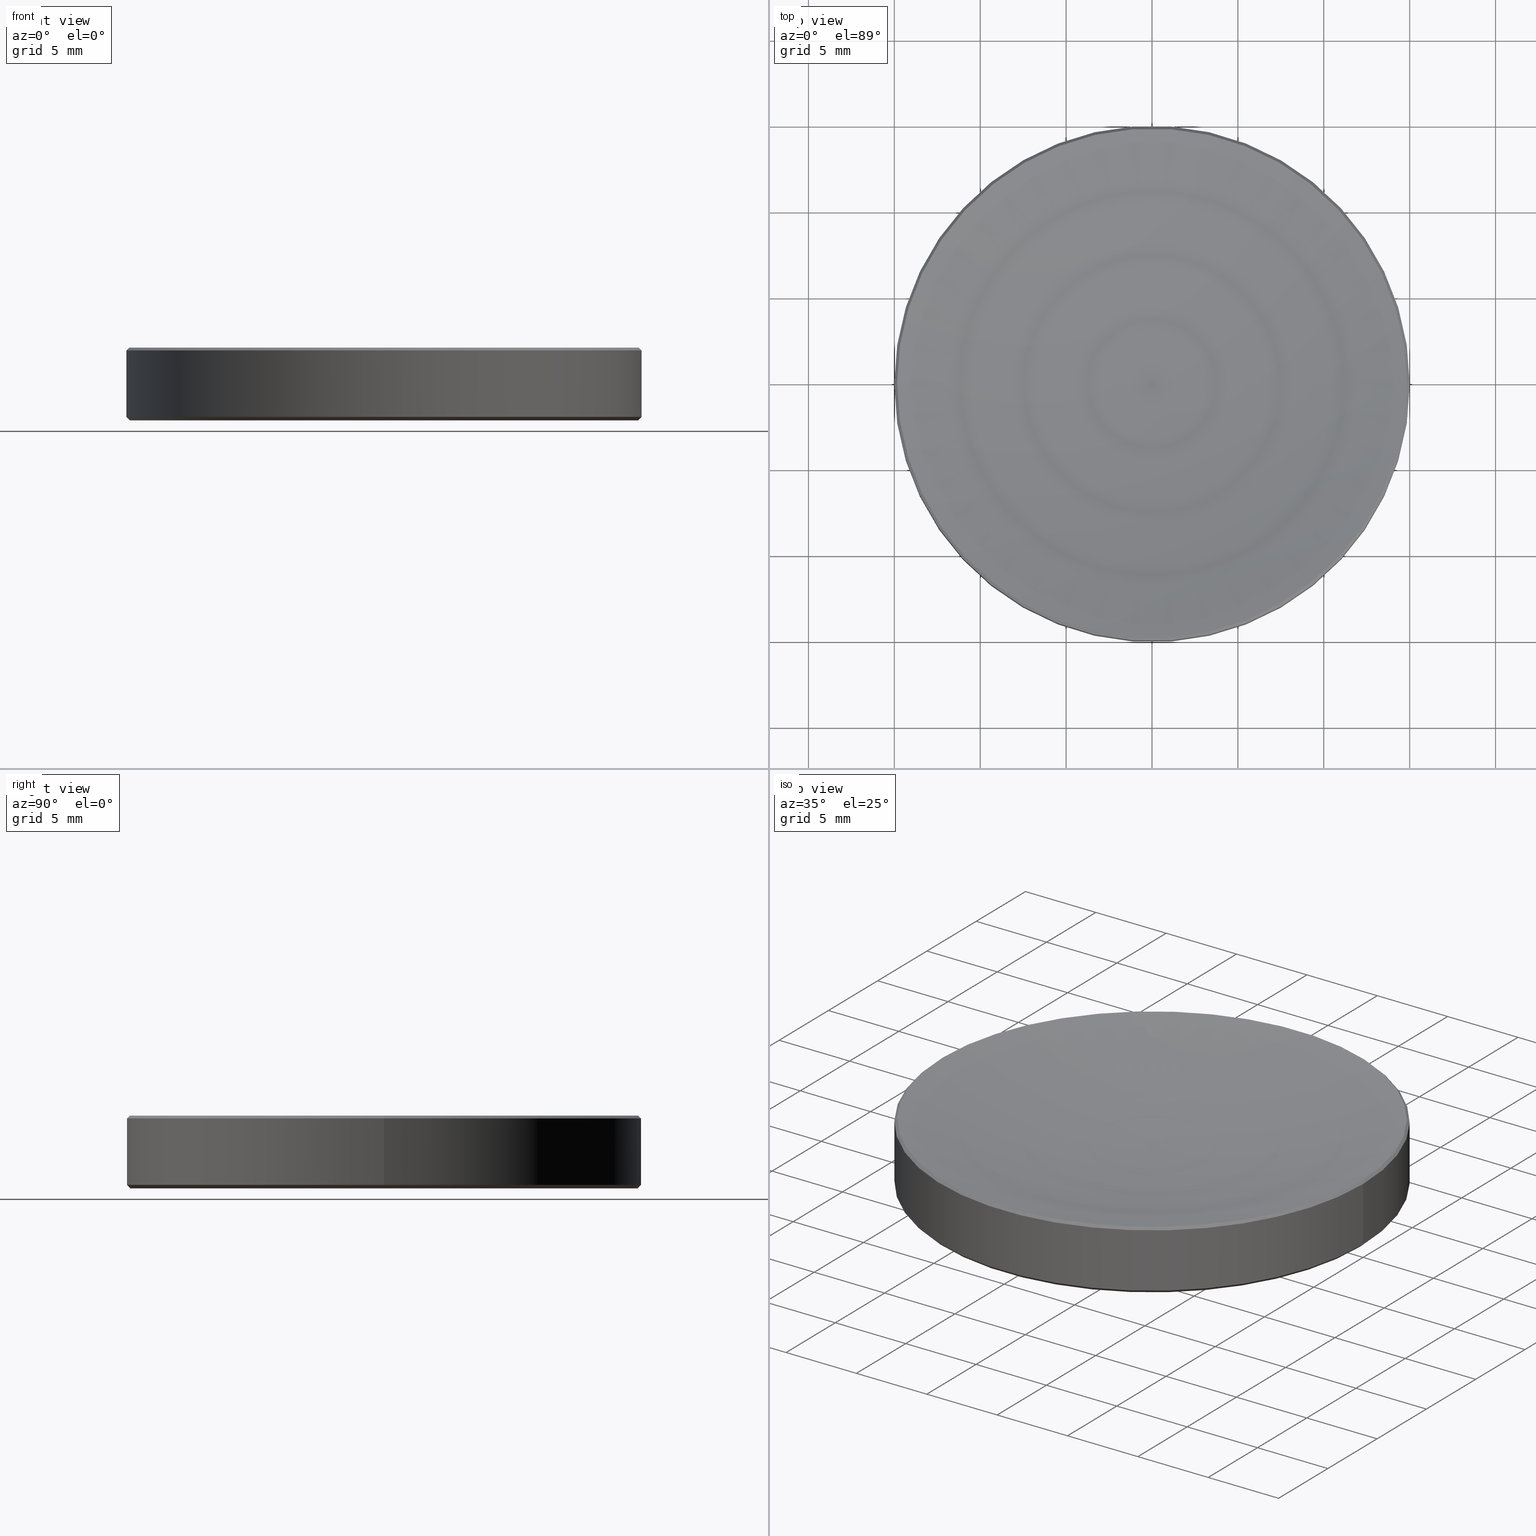
[diagram: canonical four-view strip — front | top / right | iso, engineering-drawing reading convention]
A machine part, canonical four-view strip (front | top / right | iso — engineering-drawing reading convention). The complete STEP part file that produces these views, byte-faithful:
ISO-10303-21;
HEADER;
FILE_DESCRIPTION (( 'STEP AP214' ),
    '1' );
FILE_NAME ('GL13-030-125.STEP',
    '2022-10-25T13:47:10',
    ( '' ),
    ( '' ),
    'SwSTEP 2.0',
    'SolidWorks 2022',
    '' );
FILE_SCHEMA (( 'AUTOMOTIVE_DESIGN' ));
ENDSEC;

DATA;
#1 = AXIS2_PLACEMENT_3D ( 'NONE', #4, #146, #153 ) ;
#2 = FACE_OUTER_BOUND ( 'NONE', #69, .T. ) ;
#3 = PRODUCT_CONTEXT ( 'NONE', #5, 'mechanical' ) ;
#4 = CARTESIAN_POINT ( 'NONE',  ( 0.000000000000000000, 0.000000000000000000, 0.000000000000000000 ) ) ;
#5 = APPLICATION_CONTEXT ( 'automotive_design' ) ;
#6 = EDGE_CURVE ( 'NONE', #188, #123, #131, .T. ) ;
#7 = VECTOR ( 'NONE', #121, 1000.000000000000000 ) ;
#8 = ORIENTED_EDGE ( 'NONE', *, *, #246, .T. ) ;
#9 = ORIENTED_EDGE ( 'NONE', *, *, #178, .F. ) ;
#10 = DIRECTION ( 'NONE',  ( 0.7071067811865475727, 0.000000000000000000, 0.7071067811865474617 ) ) ;
#11 = PRODUCT ( 'GL13-030-125', 'GL13-030-125', '', ( #3 ) ) ;
#12 = DIRECTION ( 'NONE',  ( 0.000000000000000000, 0.000000000000000000, -1.000000000000000000 ) ) ;
#13 = DIRECTION ( 'NONE',  ( -0.000000000000000000, -0.000000000000000000, 1.000000000000000000 ) ) ;
#14 = CARTESIAN_POINT ( 'NONE',  ( 0.000000000000000000, 0.000000000000000000, 4.231581091428418873 ) ) ;
#15 = CARTESIAN_POINT ( 'NONE',  ( -15.00000000000000000, 1.836970198721029589E-15, 2.500000000000000000 ) ) ;
#16 =( NAMED_UNIT ( * ) PLANE_ANGLE_UNIT ( ) SI_UNIT ( $, .RADIAN. ) );
#17 = CARTESIAN_POINT ( 'NONE',  ( -15.00000000000000000, 1.836970198721029194E-15, 0.1999999999999944600 ) ) ;
#18 = PRODUCT_DEFINITION ( 'δ֪', '', #204, #42 ) ;
#19 = CARTESIAN_POINT ( 'NONE',  ( 15.00000000000000000, 0.000000000000000000, 4.070000000000018048 ) ) ;
#20 = DIRECTION ( 'NONE',  ( -0.000000000000000000, -0.000000000000000000, 1.000000000000000000 ) ) ;
#21 = CIRCLE ( 'NONE', #169, 14.83841890857160806 ) ;
#22 =( GEOMETRIC_REPRESENTATION_CONTEXT ( 3 ) GLOBAL_UNCERTAINTY_ASSIGNED_CONTEXT ( ( #62 ) ) GLOBAL_UNIT_ASSIGNED_CONTEXT ( ( #167, #16, #182 ) ) REPRESENTATION_CONTEXT ( 'NONE', 'WORKASPACE' ) );
#23 = CIRCLE ( 'NONE', #49, 64.54999999999999716 ) ;
#24 = ORIENTED_EDGE ( 'NONE', *, *, #87, .F. ) ;
#25 = AXIS2_PLACEMENT_3D ( 'NONE', #92, #148, #265 ) ;
#26 = VERTEX_POINT ( 'NONE', #258 ) ;
#27 = CARTESIAN_POINT ( 'NONE',  ( 15.00000000000000000, 0.000000000000000000, 0.1999999999999944600 ) ) ;
#28 = DIRECTION ( 'NONE',  ( 1.000000000000000000, 0.000000000000000000, 0.000000000000000000 ) ) ;
#29 = DIRECTION ( 'NONE',  ( 0.000000000000000000, -1.000000000000000000, 0.000000000000000000 ) ) ;
#30 = EDGE_LOOP ( 'NONE', ( #264, #174, #237 ) ) ;
#31 =( LENGTH_UNIT ( ) NAMED_UNIT ( * ) SI_UNIT ( .MILLI., .METRE. ) );
#32 = CARTESIAN_POINT ( 'NONE',  ( 0.000000000000000000, 0.000000000000000000, 2.500000000000000000 ) ) ;
#33 = DIRECTION ( 'NONE',  ( 1.000000000000000000, 0.000000000000000000, 0.000000000000000000 ) ) ;
#34 =( NAMED_UNIT ( * ) SI_UNIT ( $, .STERADIAN. ) SOLID_ANGLE_UNIT ( ) );
#35 = CIRCLE ( 'NONE', #61, 64.54999999999999716 ) ;
#36 = DIRECTION ( 'NONE',  ( 1.000000000000000000, 0.000000000000000000, 0.000000000000000000 ) ) ;
#37 = ADVANCED_FACE ( 'NONE', ( #122 ), #209, .T. ) ;
#38 = DIRECTION ( 'NONE',  ( -0.000000000000000000, -0.000000000000000000, 1.000000000000000000 ) ) ;
#39 = ADVANCED_BREP_SHAPE_REPRESENTATION ( 'GL13-030-125', ( #72, #1 ), #104 ) ;
#40 = FACE_OUTER_BOUND ( 'NONE', #50, .T. ) ;
#41 = SURFACE_SIDE_STYLE ('',( #222 ) ) ;
#42 = PRODUCT_DEFINITION_CONTEXT ( 'detailed design', #90, 'design' ) ;
#43 = EDGE_CURVE ( 'NONE', #163, #251, #21, .T. ) ;
#44 = CIRCLE ( 'NONE', #25, 14.80000000000000604 ) ;
#45 = CIRCLE ( 'NONE', #152, 15.00000000000000000 ) ;
#46 = ADVANCED_FACE ( 'NONE', ( #213 ), #102, .F. ) ;
#47 = VERTEX_POINT ( 'NONE', #32 ) ;
#48 = AXIS2_PLACEMENT_3D ( 'NONE', #215, #12, #159 ) ;
#49 = AXIS2_PLACEMENT_3D ( 'NONE', #261, #29, #236 ) ;
#50 = EDGE_LOOP ( 'NONE', ( #142, #256, #134, #157 ) ) ;
#51 = CARTESIAN_POINT ( 'NONE',  ( 14.80000000000000604, 0.000000000000000000, 9.184850993605147944E-16 ) ) ;
#52 = VERTEX_POINT ( 'NONE', #176 ) ;
#53 = CIRCLE ( 'NONE', #205, 15.00000000000000000 ) ;
#54 = ADVANCED_FACE ( 'NONE', ( #234 ), #198, .T. ) ;
#55 = ORIENTED_EDGE ( 'NONE', *, *, #186, .F. ) ;
#56 = EDGE_LOOP ( 'NONE', ( #67, #196 ) ) ;
#57 = LINE ( 'NONE', #200, #180 ) ;
#58 = LINE ( 'NONE', #220, #172 ) ;
#59 = CARTESIAN_POINT ( 'NONE',  ( -14.83841890857158852, 1.817182222078975933E-15, 4.231581091428418873 ) ) ;
#60 = AXIS2_PLACEMENT_3D ( 'NONE', #243, #239, #107 ) ;
#61 = AXIS2_PLACEMENT_3D ( 'NONE', #76, #164, #139 ) ;
#62 = UNCERTAINTY_MEASURE_WITH_UNIT (LENGTH_MEASURE( 1.000000000000000082E-05 ), #167, 'distance_accuracy_value', 'NONE');
#63 = ORIENTED_EDGE ( 'NONE', *, *, #165, .T. ) ;
#64 = EDGE_CURVE ( 'NONE', #26, #52, #53, .T. ) ;
#65 = CONICAL_SURFACE ( 'NONE', #60, 14.83841890857159029, 0.7853981633974321808 ) ;
#66 = CONICAL_SURFACE ( 'NONE', #115, 14.83841890857159029, 0.7853981633974321808 ) ;
#67 = ORIENTED_EDGE ( 'NONE', *, *, #144, .T. ) ;
#68 = ORIENTED_EDGE ( 'NONE', *, *, #64, .T. ) ;
#69 = EDGE_LOOP ( 'NONE', ( #177, #138, #231, #189 ) ) ;
#70 = DIRECTION ( 'NONE',  ( 1.000000000000000000, 0.000000000000000000, 0.000000000000000000 ) ) ;
#71 = EDGE_LOOP ( 'NONE', ( #206, #8, #226, #75 ) ) ;
#72 = MANIFOLD_SOLID_BREP ( '����2', #218 ) ;
#73 = CARTESIAN_POINT ( 'NONE',  ( 0.000000000000000000, 0.000000000000000000, 67.04999879552784137 ) ) ;
#74 = DIRECTION ( 'NONE',  ( 1.000000000000000000, 0.000000000000000000, 0.000000000000000000 ) ) ;
#75 = ORIENTED_EDGE ( 'NONE', *, *, #252, .T. ) ;
#76 = CARTESIAN_POINT ( 'NONE',  ( 0.01246985787228815923, -1.527117152912011826E-18, 67.04999879552784137 ) ) ;
#77 = AXIS2_PLACEMENT_3D ( 'NONE', #151, #98, #96 ) ;
#78 = ORIENTED_EDGE ( 'NONE', *, *, #43, .T. ) ;
#79 = CYLINDRICAL_SURFACE ( 'NONE', #190, 15.00000000000000000 ) ;
#80 = DIRECTION ( 'NONE',  ( 1.000000000000000000, 0.000000000000000000, 0.000000000000000000 ) ) ;
#81 = PRESENTATION_STYLE_ASSIGNMENT (( #219 ) ) ;
#82 = FILL_AREA_STYLE_COLOUR ( '', #173 ) ;
#83 = CARTESIAN_POINT ( 'NONE',  ( 0.000000000000000000, 0.000000000000000000, 9.184850993605147944E-16 ) ) ;
#84 = DIRECTION ( 'NONE',  ( 0.000000000000000000, -0.000000000000000000, 1.000000000000000000 ) ) ;
#85 =( LENGTH_UNIT ( ) NAMED_UNIT ( * ) SI_UNIT ( .MILLI., .METRE. ) );
#86 = EDGE_CURVE ( 'NONE', #179, #233, #44, .T. ) ;
#87 = EDGE_CURVE ( 'NONE', #251, #163, #119, .T. ) ;
#88 = ORIENTED_EDGE ( 'NONE', *, *, #6, .F. ) ;
#89 = VECTOR ( 'NONE', #10, 1000.000000000000000 ) ;
#90 = APPLICATION_CONTEXT ( 'automotive_design' ) ;
#91 = EDGE_CURVE ( 'NONE', #26, #123, #58, .T. ) ;
#92 = CARTESIAN_POINT ( 'NONE',  ( 0.000000000000000000, 0.000000000000000000, 9.184850993605147944E-16 ) ) ;
#93 = ORIENTED_EDGE ( 'NONE', *, *, #255, .T. ) ;
#94 = AXIS2_PLACEMENT_3D ( 'NONE', #110, #201, #36 ) ;
#95 = PRODUCT_DEFINITION_SHAPE ( 'NONE', 'NONE',  #18 ) ;
#96 = DIRECTION ( 'NONE',  ( 1.000000000000000000, 0.000000000000000000, 0.000000000000000000 ) ) ;
#97 = ADVANCED_FACE ( 'NONE', ( #2 ), #65, .T. ) ;
#98 = DIRECTION ( 'NONE',  ( -0.000000000000000000, -0.000000000000000000, 1.000000000000000000 ) ) ;
#99 = DIRECTION ( 'NONE',  ( -0.000000000000000000, -0.000000000000000000, 1.000000000000000000 ) ) ;
#100 = DIRECTION ( 'NONE',  ( -0.000000000000000000, -0.000000000000000000, 1.000000000000000000 ) ) ;
#101 = CARTESIAN_POINT ( 'NONE',  ( 0.000000000000000000, 0.000000000000000000, 0.1999999999999944600 ) ) ;
#102 = TOROIDAL_SURFACE ( 'NONE', #230, -0.01246985787228815923, 64.54999999999999716 ) ;
#103 = CARTESIAN_POINT ( 'NONE',  ( 0.000000000000000000, 0.000000000000000000, 4.070000000000018048 ) ) ;
#104 =( GEOMETRIC_REPRESENTATION_CONTEXT ( 3 ) GLOBAL_UNCERTAINTY_ASSIGNED_CONTEXT ( ( #227 ) ) GLOBAL_UNIT_ASSIGNED_CONTEXT ( ( #31, #238, #34 ) ) REPRESENTATION_CONTEXT ( 'NONE', 'WORKASPACE' ) );
#105 = FILL_AREA_STYLE ('',( #170 ) ) ;
#106 = CARTESIAN_POINT ( 'NONE',  ( 0.000000000000000000, 0.000000000000000000, 0.1999999999999944600 ) ) ;
#107 = DIRECTION ( 'NONE',  ( -1.000000000000000000, 0.000000000000000000, 0.000000000000000000 ) ) ;
#108 =( NAMED_UNIT ( * ) SI_UNIT ( $, .STERADIAN. ) SOLID_ANGLE_UNIT ( ) );
#109 = CONICAL_SURFACE ( 'NONE', #199, 15.00000000000000000, 0.7853981633974482790 ) ;
#110 = CARTESIAN_POINT ( 'NONE',  ( 0.000000000000000000, 0.000000000000000000, 9.184850993605147944E-16 ) ) ;
#111 = EDGE_CURVE ( 'NONE', #163, #188, #57, .T. ) ;
#112 = SURFACE_STYLE_FILL_AREA ( #203 ) ;
#113 = PRESENTATION_STYLE_ASSIGNMENT (( #248 ) ) ;
#114 = ORIENTED_EDGE ( 'NONE', *, *, #91, .F. ) ;
#115 = AXIS2_PLACEMENT_3D ( 'NONE', #171, #254, #143 ) ;
#116 = ORIENTED_EDGE ( 'NONE', *, *, #111, .F. ) ;
#117 = CARTESIAN_POINT ( 'NONE',  ( 14.83841890857158852, 0.000000000000000000, 4.231581091428418873 ) ) ;
#118 = DIRECTION ( 'NONE',  ( -0.000000000000000000, -0.000000000000000000, 1.000000000000000000 ) ) ;
#119 = CIRCLE ( 'NONE', #266, 14.83841890857160806 ) ;
#120 =( GEOMETRIC_REPRESENTATION_CONTEXT ( 3 ) GLOBAL_UNCERTAINTY_ASSIGNED_CONTEXT ( ( #244 ) ) GLOBAL_UNIT_ASSIGNED_CONTEXT ( ( #85, #245, #108 ) ) REPRESENTATION_CONTEXT ( 'NONE', 'WORKASPACE' ) );
#121 = DIRECTION ( 'NONE',  ( 0.7071067811865361374, 8.659560562354793575E-17, -0.7071067811865588970 ) ) ;
#122 = FACE_OUTER_BOUND ( 'NONE', #71, .T. ) ;
#123 = VERTEX_POINT ( 'NONE', #19 ) ;
#124 = LINE ( 'NONE', #216, #7 ) ;
#125 = DIRECTION ( 'NONE',  ( 1.000000000000000000, 0.000000000000000000, 0.000000000000000000 ) ) ;
#126 = CARTESIAN_POINT ( 'NONE',  ( -15.00000000000000000, 1.836970198721029589E-15, 4.070000000000018048 ) ) ;
#127 = PLANE ( 'NONE',  #132 ) ;
#128 = DIRECTION ( 'NONE',  ( -0.000000000000000000, -0.000000000000000000, 1.000000000000000000 ) ) ;
#129 = CARTESIAN_POINT ( 'NONE',  ( 0.000000000000000000, 0.000000000000000000, 4.231581091428418873 ) ) ;
#130 = APPLICATION_PROTOCOL_DEFINITION ( 'draft international standard', 'automotive_design', 1998, #5 ) ;
#131 = CIRCLE ( 'NONE', #48, 15.00000000000000000 ) ;
#132 = AXIS2_PLACEMENT_3D ( 'NONE', #83, #84, #150 ) ;
#133 = PRODUCT_RELATED_PRODUCT_CATEGORY ( 'part', '', ( #11 ) ) ;
#134 = ORIENTED_EDGE ( 'NONE', *, *, #64, .F. ) ;
#135 = PRESENTATION_LAYER_ASSIGNMENT (  '', '', ( #154 ) ) ;
#136 = EDGE_LOOP ( 'NONE', ( #24, #229, #88, #116 ) ) ;
#137 = DIRECTION ( 'NONE',  ( -0.000000000000000000, -0.000000000000000000, 1.000000000000000000 ) ) ;
#138 = ORIENTED_EDGE ( 'NONE', *, *, #43, .F. ) ;
#139 = DIRECTION ( 'NONE',  ( -1.000000000000000000, 1.224646799147352961E-16, 0.000000000000000000 ) ) ;
#140 = DIRECTION ( 'NONE',  ( -0.000000000000000000, -0.000000000000000000, 1.000000000000000000 ) ) ;
#141 = AXIS2_PLACEMENT_3D ( 'NONE', #194, #13, #28 ) ;
#142 = ORIENTED_EDGE ( 'NONE', *, *, #86, .F. ) ;
#143 = DIRECTION ( 'NONE',  ( -1.000000000000000000, 0.000000000000000000, 0.000000000000000000 ) ) ;
#144 = EDGE_CURVE ( 'NONE', #233, #179, #247, .T. ) ;
#145 = DIRECTION ( 'NONE',  ( 1.000000000000000000, 0.000000000000000000, 0.000000000000000000 ) ) ;
#146 = DIRECTION ( 'NONE',  ( 0.000000000000000000, 0.000000000000000000, 1.000000000000000000 ) ) ;
#147 = COLOUR_RGB ( '',1.000000000000000000, 1.000000000000000000, 1.000000000000000000 ) ;
#148 = DIRECTION ( 'NONE',  ( 0.000000000000000000, 0.000000000000000000, -1.000000000000000000 ) ) ;
#149 = ADVANCED_FACE ( 'NONE', ( #184 ), #127, .F. ) ;
#150 = DIRECTION ( 'NONE',  ( 1.000000000000000000, 0.000000000000000000, 0.000000000000000000 ) ) ;
#151 = CARTESIAN_POINT ( 'NONE',  ( 0.000000000000000000, 0.000000000000000000, 67.04999879552784137 ) ) ;
#152 = AXIS2_PLACEMENT_3D ( 'NONE', #103, #259, #257 ) ;
#153 = DIRECTION ( 'NONE',  ( 1.000000000000000000, 0.000000000000000000, 0.000000000000000000 ) ) ;
#154 = STYLED_ITEM ( 'NONE', ( #113 ), #39 ) ;
#155 = ADVANCED_FACE ( 'NONE', ( #40 ), #109, .T. ) ;
#156 = EDGE_LOOP ( 'NONE', ( #68, #161, #250, #114 ) ) ;
#157 = ORIENTED_EDGE ( 'NONE', *, *, #255, .F. ) ;
#158 = DIRECTION ( 'NONE',  ( -0.7071067811865475727, 8.659560562354931626E-17, 0.7071067811865474617 ) ) ;
#159 = DIRECTION ( 'NONE',  ( -1.000000000000000000, 0.000000000000000000, 0.000000000000000000 ) ) ;
#160 = DIRECTION ( 'NONE',  ( -0.000000000000000000, -0.000000000000000000, 1.000000000000000000 ) ) ;
#161 = ORIENTED_EDGE ( 'NONE', *, *, #228, .T. ) ;
#162 = ADVANCED_FACE ( 'NONE', ( #183 ), #210, .F. ) ;
#163 = VERTEX_POINT ( 'NONE', #59 ) ;
#164 = DIRECTION ( 'NONE',  ( 1.224646799147353207E-16, 1.000000000000000000, 0.000000000000000000 ) ) ;
#165 = EDGE_CURVE ( 'NONE', #47, #163, #35, .T. ) ;
#166 = MECHANICAL_DESIGN_GEOMETRIC_PRESENTATION_REPRESENTATION (  '', ( #223 ), #22 ) ;
#167 =( LENGTH_UNIT ( ) NAMED_UNIT ( * ) SI_UNIT ( .MILLI., .METRE. ) );
#168 = SHAPE_DEFINITION_REPRESENTATION ( #95, #39 ) ;
#169 = AXIS2_PLACEMENT_3D ( 'NONE', #14, #118, #191 ) ;
#170 = FILL_AREA_STYLE_COLOUR ( '', #147 ) ;
#171 = CARTESIAN_POINT ( 'NONE',  ( 0.000000000000000000, 0.000000000000000000, 4.231581091428432195 ) ) ;
#172 = VECTOR ( 'NONE', #128, 1000.000000000000000 ) ;
#173 = COLOUR_RGB ( '',1.000000000000000000, 1.000000000000000000, 1.000000000000000000 ) ;
#174 = ORIENTED_EDGE ( 'NONE', *, *, #186, .T. ) ;
#175 = LINE ( 'NONE', #17, #224 ) ;
#176 = CARTESIAN_POINT ( 'NONE',  ( -15.00000000000000000, 1.836970198721029589E-15, 0.1999999999999944600 ) ) ;
#177 = ORIENTED_EDGE ( 'NONE', *, *, #202, .F. ) ;
#178 = EDGE_CURVE ( 'NONE', #179, #52, #175, .T. ) ;
#179 = VERTEX_POINT ( 'NONE', #195 ) ;
#180 = VECTOR ( 'NONE', #217, 1000.000000000000000 ) ;
#181 = LINE ( 'NONE', #27, #89 ) ;
#182 =( NAMED_UNIT ( * ) SI_UNIT ( $, .STERADIAN. ) SOLID_ANGLE_UNIT ( ) );
#183 = FACE_OUTER_BOUND ( 'NONE', #30, .T. ) ;
#184 = FACE_OUTER_BOUND ( 'NONE', #56, .T. ) ;
#185 = DIRECTION ( 'NONE',  ( 1.000000000000000000, 0.000000000000000000, 0.000000000000000000 ) ) ;
#186 = EDGE_CURVE ( 'NONE', #47, #251, #23, .T. ) ;
#187 = MECHANICAL_DESIGN_GEOMETRIC_PRESENTATION_REPRESENTATION (  '', ( #154 ), #120 ) ;
#188 = VERTEX_POINT ( 'NONE', #126 ) ;
#189 = ORIENTED_EDGE ( 'NONE', *, *, #252, .F. ) ;
#190 = AXIS2_PLACEMENT_3D ( 'NONE', #197, #100, #70 ) ;
#191 = DIRECTION ( 'NONE',  ( 1.000000000000000000, 0.000000000000000000, 0.000000000000000000 ) ) ;
#192 = FACE_OUTER_BOUND ( 'NONE', #136, .T. ) ;
#193 = ADVANCED_FACE ( 'NONE', ( #192 ), #66, .T. ) ;
#194 = CARTESIAN_POINT ( 'NONE',  ( 0.000000000000000000, 0.000000000000000000, 2.500000000000000000 ) ) ;
#195 = CARTESIAN_POINT ( 'NONE',  ( -14.80000000000000604, 1.824723730729555837E-15, 9.184850993605147944E-16 ) ) ;
#196 = ORIENTED_EDGE ( 'NONE', *, *, #86, .T. ) ;
#197 = CARTESIAN_POINT ( 'NONE',  ( 0.000000000000000000, 0.000000000000000000, 2.500000000000000000 ) ) ;
#198 = CONICAL_SURFACE ( 'NONE', #241, 15.00000000000000000, 0.7853981633974482790 ) ;
#199 = AXIS2_PLACEMENT_3D ( 'NONE', #106, #20, #185 ) ;
#200 = CARTESIAN_POINT ( 'NONE',  ( -14.83841890857159029, 0.000000000000000000, 4.231581091428432195 ) ) ;
#201 = DIRECTION ( 'NONE',  ( 0.000000000000000000, 0.000000000000000000, -1.000000000000000000 ) ) ;
#202 = EDGE_CURVE ( 'NONE', #251, #123, #124, .T. ) ;
#203 = FILL_AREA_STYLE ('',( #82 ) ) ;
#204 = PRODUCT_DEFINITION_FORMATION_WITH_SPECIFIED_SOURCE ( '�κ�', '', #11, .NOT_KNOWN. ) ;
#205 = AXIS2_PLACEMENT_3D ( 'NONE', #211, #99, #33 ) ;
#206 = ORIENTED_EDGE ( 'NONE', *, *, #228, .F. ) ;
#207 = ORIENTED_EDGE ( 'NONE', *, *, #144, .F. ) ;
#208 = CARTESIAN_POINT ( 'NONE',  ( 0.000000000000000000, 0.000000000000000000, 0.1999999999999944600 ) ) ;
#209 = CYLINDRICAL_SURFACE ( 'NONE', #141, 15.00000000000000000 ) ;
#210 = TOROIDAL_SURFACE ( 'NONE', #77, -0.01246985787228815923, 64.54999999999999716 ) ;
#211 = CARTESIAN_POINT ( 'NONE',  ( 0.000000000000000000, 0.000000000000000000, 0.1999999999999944600 ) ) ;
#212 = LINE ( 'NONE', #15, #249 ) ;
#213 = FACE_OUTER_BOUND ( 'NONE', #260, .T. ) ;
#214 = FACE_OUTER_BOUND ( 'NONE', #156, .T. ) ;
#215 = CARTESIAN_POINT ( 'NONE',  ( 0.000000000000000000, 0.000000000000000000, 4.070000000000018048 ) ) ;
#216 = CARTESIAN_POINT ( 'NONE',  ( 14.83841890857159029, 1.817182222078975933E-15, 4.231581091428432195 ) ) ;
#217 = DIRECTION ( 'NONE',  ( -0.7071067811865361374, 0.000000000000000000, -0.7071067811865588970 ) ) ;
#218 = CLOSED_SHELL ( 'NONE', ( #193, #155, #221, #46, #162, #37, #149, #54, #97 ) ) ;
#219 = SURFACE_STYLE_USAGE ( .BOTH. , #41 ) ;
#220 = CARTESIAN_POINT ( 'NONE',  ( 15.00000000000000000, 0.000000000000000000, 2.500000000000000000 ) ) ;
#221 = ADVANCED_FACE ( 'NONE', ( #214 ), #79, .T. ) ;
#222 = SURFACE_STYLE_FILL_AREA ( #105 ) ;
#223 = STYLED_ITEM ( 'NONE', ( #81 ), #72 ) ;
#224 = VECTOR ( 'NONE', #158, 1000.000000000000000 ) ;
#225 = SURFACE_SIDE_STYLE ('',( #112 ) ) ;
#226 = ORIENTED_EDGE ( 'NONE', *, *, #91, .T. ) ;
#227 = UNCERTAINTY_MEASURE_WITH_UNIT (LENGTH_MEASURE( 1.000000000000000082E-05 ), #31, 'distance_accuracy_value', 'NONE');
#228 = EDGE_CURVE ( 'NONE', #52, #188, #212, .T. ) ;
#229 = ORIENTED_EDGE ( 'NONE', *, *, #202, .T. ) ;
#230 = AXIS2_PLACEMENT_3D ( 'NONE', #73, #160, #125 ) ;
#231 = ORIENTED_EDGE ( 'NONE', *, *, #111, .T. ) ;
#232 = DIRECTION ( 'NONE',  ( -0.000000000000000000, -0.000000000000000000, 1.000000000000000000 ) ) ;
#233 = VERTEX_POINT ( 'NONE', #51 ) ;
#234 = FACE_OUTER_BOUND ( 'NONE', #253, .T. ) ;
#235 = ORIENTED_EDGE ( 'NONE', *, *, #246, .F. ) ;
#236 = DIRECTION ( 'NONE',  ( 0.000000000000000000, 0.000000000000000000, -1.000000000000000000 ) ) ;
#237 = ORIENTED_EDGE ( 'NONE', *, *, #87, .T. ) ;
#238 =( NAMED_UNIT ( * ) PLANE_ANGLE_UNIT ( ) SI_UNIT ( $, .RADIAN. ) );
#239 = DIRECTION ( 'NONE',  ( 0.000000000000000000, 0.000000000000000000, -1.000000000000000000 ) ) ;
#240 = APPLICATION_PROTOCOL_DEFINITION ( 'draft international standard', 'automotive_design', 1998, #90 ) ;
#241 = AXIS2_PLACEMENT_3D ( 'NONE', #101, #140, #145 ) ;
#242 = AXIS2_PLACEMENT_3D ( 'NONE', #208, #137, #74 ) ;
#243 = CARTESIAN_POINT ( 'NONE',  ( 0.000000000000000000, 0.000000000000000000, 4.231581091428432195 ) ) ;
#244 = UNCERTAINTY_MEASURE_WITH_UNIT (LENGTH_MEASURE( 1.000000000000000082E-05 ), #85, 'distance_accuracy_value', 'NONE');
#245 =( NAMED_UNIT ( * ) PLANE_ANGLE_UNIT ( ) SI_UNIT ( $, .RADIAN. ) );
#246 = EDGE_CURVE ( 'NONE', #52, #26, #263, .T. ) ;
#247 = CIRCLE ( 'NONE', #94, 14.80000000000000604 ) ;
#248 = SURFACE_STYLE_USAGE ( .BOTH. , #225 ) ;
#249 = VECTOR ( 'NONE', #232, 1000.000000000000000 ) ;
#250 = ORIENTED_EDGE ( 'NONE', *, *, #6, .T. ) ;
#251 = VERTEX_POINT ( 'NONE', #117 ) ;
#252 = EDGE_CURVE ( 'NONE', #123, #188, #45, .T. ) ;
#253 = EDGE_LOOP ( 'NONE', ( #9, #207, #93, #235 ) ) ;
#254 = DIRECTION ( 'NONE',  ( 0.000000000000000000, 0.000000000000000000, -1.000000000000000000 ) ) ;
#255 = EDGE_CURVE ( 'NONE', #233, #26, #181, .T. ) ;
#256 = ORIENTED_EDGE ( 'NONE', *, *, #178, .T. ) ;
#257 = DIRECTION ( 'NONE',  ( -1.000000000000000000, 0.000000000000000000, 0.000000000000000000 ) ) ;
#258 = CARTESIAN_POINT ( 'NONE',  ( 15.00000000000000000, 0.000000000000000000, 0.1999999999999944600 ) ) ;
#259 = DIRECTION ( 'NONE',  ( 0.000000000000000000, 0.000000000000000000, -1.000000000000000000 ) ) ;
#260 = EDGE_LOOP ( 'NONE', ( #55, #63, #78 ) ) ;
#261 = CARTESIAN_POINT ( 'NONE',  ( -0.01246985787228815923, 0.000000000000000000, 67.04999879552784137 ) ) ;
#262 = PRESENTATION_LAYER_ASSIGNMENT (  '', '', ( #223 ) ) ;
#263 = CIRCLE ( 'NONE', #242, 15.00000000000000000 ) ;
#264 = ORIENTED_EDGE ( 'NONE', *, *, #165, .F. ) ;
#265 = DIRECTION ( 'NONE',  ( 1.000000000000000000, 0.000000000000000000, 0.000000000000000000 ) ) ;
#266 = AXIS2_PLACEMENT_3D ( 'NONE', #129, #38, #80 ) ;
ENDSEC;
END-ISO-10303-21;
